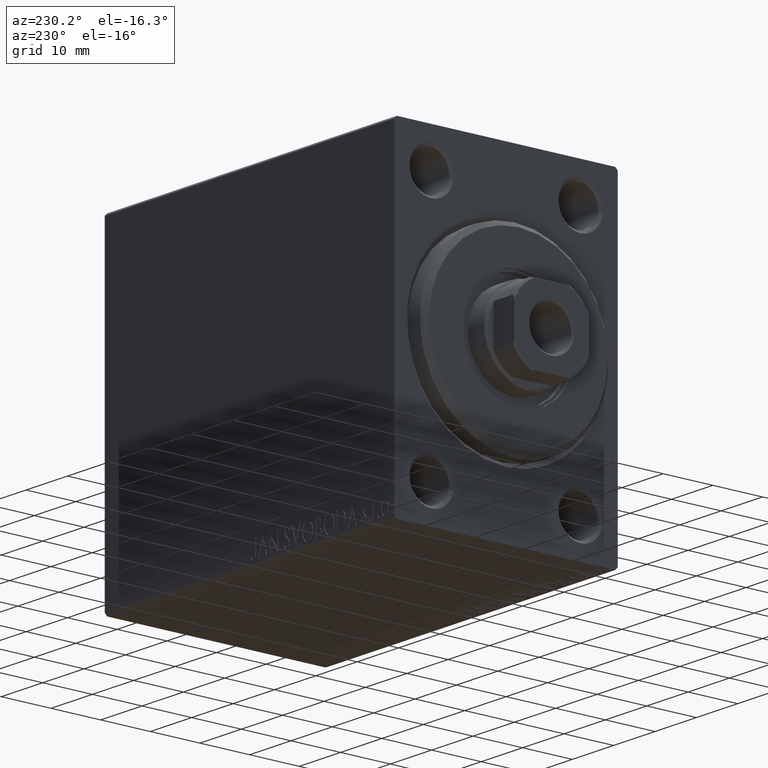
[diagram: clean part render]
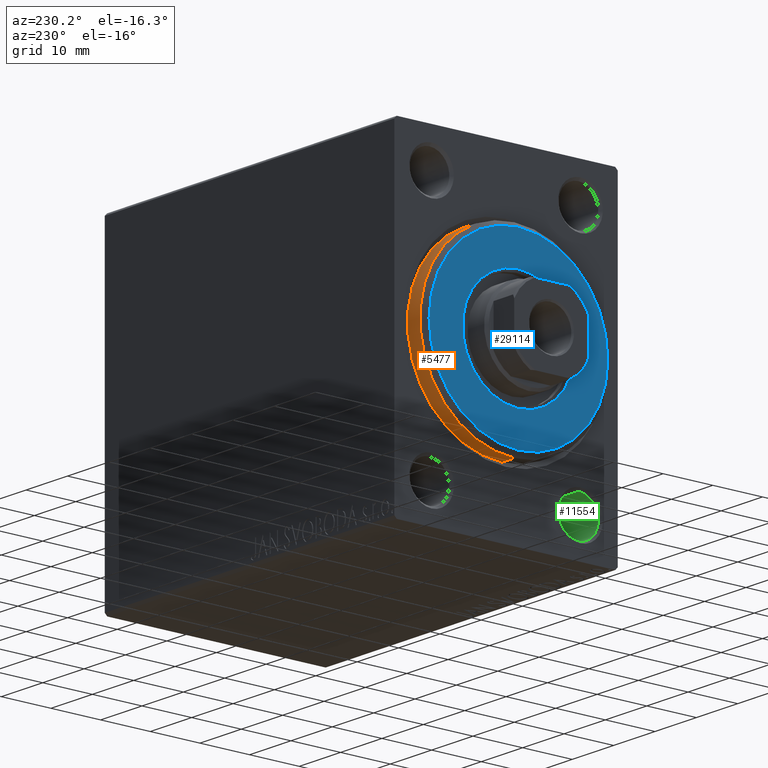
[diagram: same view with three faces highlighted in distinct colors, each labeled with its STEP entity id]
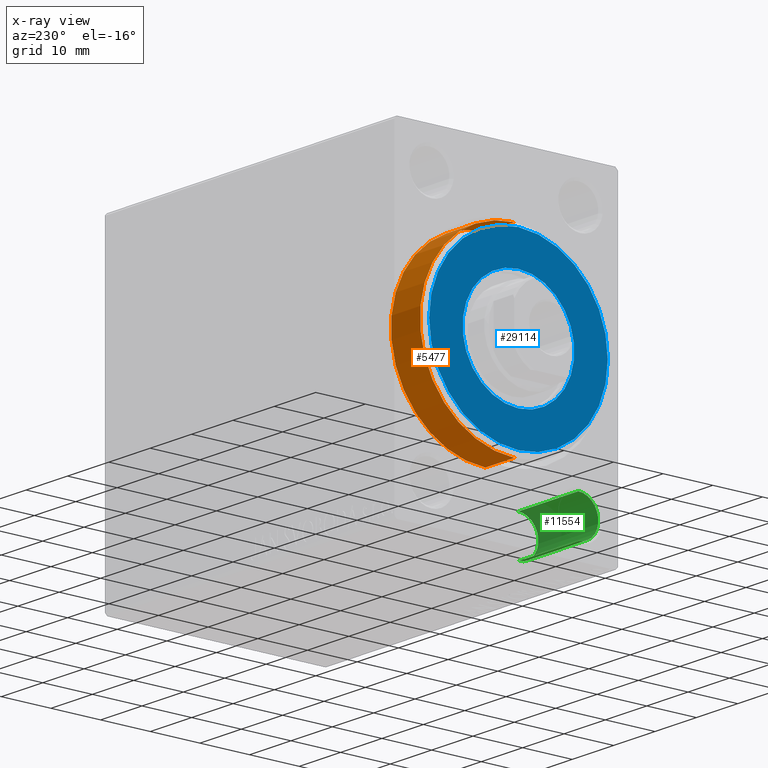
[diagram: x-ray of the same camera — body ghosted, the three highlighted faces saturated]
A machine part, auxiliary view with three faces highlighted in distinct colors.
The next image is the same camera in x-ray (body ghosted, the three faces saturated) — at least one of them is partly hidden behind the body in this view.
Their STEP definitions:

[orange] entity #5477 — the highlighted cylindrical surface (partial cylindrical patch) has radius 19 mm, axis along (1, -0, -0).
#2015 = DIRECTION ( 'NONE',  ( -1.000000000000000000, -0.000000000000000000, -0.000000000000000000 ) ) ;
#2277 = EDGE_LOOP ( 'NONE', ( #4511, #34311, #31344, #16781 ) ) ;
#2759 = VERTEX_POINT ( 'NONE', #42901 ) ;
#2841 = CIRCLE ( 'NONE', #26282, 19.00000000000000000 ) ;
#3554 = LINE ( 'NONE', #4433, #34435 ) ;
#4433 = CARTESIAN_POINT ( 'NONE',  ( 3.000000000000000000, 2.326828918379970970E-15, -19.00000000000000000 ) ) ;
#4511 = ORIENTED_EDGE ( 'NONE', *, *, #16220, .F. ) ;
#5435 = VERTEX_POINT ( 'NONE', #42976 ) ;
#5477 = ADVANCED_FACE ( 'NONE', ( #43198 ), #26199, .T. ) ;
#6459 = AXIS2_PLACEMENT_3D ( 'NONE', #15687, #12122, #36052 ) ;
#7722 = CARTESIAN_POINT ( 'NONE',  ( 1.999999999999992228, 2.326828918379970970E-15, -19.00000000000000000 ) ) ;
#9373 = AXIS2_PLACEMENT_3D ( 'NONE', #34838, #14495, #38865 ) ;
#10085 = CIRCLE ( 'NONE', #9373, 19.00000000000000000 ) ;
#10873 = VERTEX_POINT ( 'NONE', #36578 ) ;
#12122 = DIRECTION ( 'NONE',  ( -1.000000000000000000, -0.000000000000000000, -0.000000000000000000 ) ) ;
#13259 = EDGE_CURVE ( 'NONE', #5435, #2759, #10085, .T. ) ;
#14495 = DIRECTION ( 'NONE',  ( -1.000000000000000000, 0.000000000000000000, 0.000000000000000000 ) ) ;
#15687 = CARTESIAN_POINT ( 'NONE',  ( 3.000000000000000000, 0.000000000000000000, 0.000000000000000000 ) ) ;
#15932 = VECTOR ( 'NONE', #2015, 1000.000000000000000 ) ;
#16130 = DIRECTION ( 'NONE',  ( 0.000000000000000000, 0.000000000000000000, -1.000000000000000000 ) ) ;
#16220 = EDGE_CURVE ( 'NONE', #21702, #5435, #3554, .T. ) ;
#16781 = ORIENTED_EDGE ( 'NONE', *, *, #13259, .F. ) ;
#21702 = VERTEX_POINT ( 'NONE', #7722 ) ;
#22845 = DIRECTION ( 'NONE',  ( -1.000000000000000000, 0.000000000000000000, 0.000000000000000000 ) ) ;
#24983 = DIRECTION ( 'NONE',  ( -1.000000000000000000, -0.000000000000000000, -0.000000000000000000 ) ) ;
#25482 = LINE ( 'NONE', #43347, #15932 ) ;
#26199 = CYLINDRICAL_SURFACE ( 'NONE', #6459, 19.00000000000000000 ) ;
#26282 = AXIS2_PLACEMENT_3D ( 'NONE', #35823, #22845, #16130 ) ;
#26910 = EDGE_CURVE ( 'NONE', #21702, #10873, #2841, .T. ) ;
#31344 = ORIENTED_EDGE ( 'NONE', *, *, #40791, .T. ) ;
#34311 = ORIENTED_EDGE ( 'NONE', *, *, #26910, .T. ) ;
#34435 = VECTOR ( 'NONE', #24983, 1000.000000000000000 ) ;
#34838 = CARTESIAN_POINT ( 'NONE',  ( -5.000000000000000000, 0.000000000000000000, 0.000000000000000000 ) ) ;
#35823 = CARTESIAN_POINT ( 'NONE',  ( 1.999999999999992228, 0.000000000000000000, 0.000000000000000000 ) ) ;
#36052 = DIRECTION ( 'NONE',  ( 0.000000000000000000, 0.000000000000000000, 1.000000000000000000 ) ) ;
#36578 = CARTESIAN_POINT ( 'NONE',  ( 1.999999999999992228, 0.000000000000000000, 19.00000000000000000 ) ) ;
#38865 = DIRECTION ( 'NONE',  ( 0.000000000000000000, 0.000000000000000000, 1.000000000000000000 ) ) ;
#40791 = EDGE_CURVE ( 'NONE', #10873, #2759, #25482, .T. ) ;
#42901 = CARTESIAN_POINT ( 'NONE',  ( -5.000000000000000000, 0.000000000000000000, 19.00000000000000000 ) ) ;
#42976 = CARTESIAN_POINT ( 'NONE',  ( -5.000000000000000000, 2.326828918379970970E-15, -19.00000000000000000 ) ) ;
#43198 = FACE_OUTER_BOUND ( 'NONE', #2277, .T. ) ;
#43347 = CARTESIAN_POINT ( 'NONE',  ( 3.000000000000000000, 0.000000000000000000, 19.00000000000000000 ) ) ;

[blue] entity #29114 — the highlighted planar face has unit normal (-1, 0, 0).
#692 = AXIS2_PLACEMENT_3D ( 'NONE', #9833, #6500, #34417 ) ;
#1475 = FACE_OUTER_BOUND ( 'NONE', #11649, .T. ) ;
#2641 = EDGE_LOOP ( 'NONE', ( #15818, #36557 ) ) ;
#3615 = CARTESIAN_POINT ( 'NONE',  ( 3.000000000000000000, 0.000000000000000000, 0.000000000000000000 ) ) ;
#4387 = DIRECTION ( 'NONE',  ( 0.000000000000000000, 0.000000000000000000, -1.000000000000000000 ) ) ;
#4642 = CARTESIAN_POINT ( 'NONE',  ( 3.000000000000000000, 0.000000000000000000, 0.000000000000000000 ) ) ;
#4740 = EDGE_CURVE ( 'NONE', #5820, #7361, #43073, .T. ) ;
#5306 = VERTEX_POINT ( 'NONE', #10585 ) ;
#5820 = VERTEX_POINT ( 'NONE', #11191 ) ;
#6500 = DIRECTION ( 'NONE',  ( 1.000000000000000000, -0.000000000000000000, 0.000000000000000000 ) ) ;
#6798 = EDGE_CURVE ( 'NONE', #7361, #5820, #24921, .T. ) ;
#7361 = VERTEX_POINT ( 'NONE', #24700 ) ;
#7523 = PLANE ( 'NONE',  #34197 ) ;
#9833 = CARTESIAN_POINT ( 'NONE',  ( 3.000000000000000000, 0.000000000000000000, 0.000000000000000000 ) ) ;
#10585 = CARTESIAN_POINT ( 'NONE',  ( 3.000000000000000000, 0.000000000000000000, -11.25000000000000178 ) ) ;
#11037 = CIRCLE ( 'NONE', #18877, 11.25000000000000178 ) ;
#11084 = FACE_BOUND ( 'NONE', #2641, .T. ) ;
#11191 = CARTESIAN_POINT ( 'NONE',  ( 3.000000000000000000, 2.265596578422603002E-15, -17.99999999999999645 ) ) ;
#11545 = DIRECTION ( 'NONE',  ( 0.000000000000000000, 0.000000000000000000, -1.000000000000000000 ) ) ;
#11649 = EDGE_LOOP ( 'NONE', ( #23587, #35955 ) ) ;
#12269 = AXIS2_PLACEMENT_3D ( 'NONE', #4642, #22034, #11545 ) ;
#13411 = CARTESIAN_POINT ( 'NONE',  ( 3.000000000000000000, 1.377727649040772586E-15, 11.25000000000000178 ) ) ;
#14292 = VERTEX_POINT ( 'NONE', #13411 ) ;
#15089 = DIRECTION ( 'NONE',  ( 1.000000000000000000, -0.000000000000000000, 0.000000000000000000 ) ) ;
#15818 = ORIENTED_EDGE ( 'NONE', *, *, #37588, .F. ) ;
#16996 = DIRECTION ( 'NONE',  ( 0.000000000000000000, 0.000000000000000000, -1.000000000000000000 ) ) ;
#17560 = CARTESIAN_POINT ( 'NONE',  ( 3.000000000000000000, 0.000000000000000000, 0.000000000000000000 ) ) ;
#18418 = DIRECTION ( 'NONE',  ( 0.000000000000000000, 0.000000000000000000, -1.000000000000000000 ) ) ;
#18877 = AXIS2_PLACEMENT_3D ( 'NONE', #31407, #31187, #18418 ) ;
#19907 = DIRECTION ( 'NONE',  ( 1.000000000000000000, -0.000000000000000000, 0.000000000000000000 ) ) ;
#21727 = EDGE_CURVE ( 'NONE', #14292, #5306, #11037, .T. ) ;
#22034 = DIRECTION ( 'NONE',  ( 1.000000000000000000, 0.000000000000000000, 0.000000000000000000 ) ) ;
#23587 = ORIENTED_EDGE ( 'NONE', *, *, #6798, .T. ) ;
#24700 = CARTESIAN_POINT ( 'NONE',  ( 3.000000000000000000, 0.000000000000000000, 17.99999999999999645 ) ) ;
#24921 = CIRCLE ( 'NONE', #692, 17.99999999999999645 ) ;
#29114 = ADVANCED_FACE ( 'NONE', ( #1475, #11084 ), #7523, .T. ) ;
#31187 = DIRECTION ( 'NONE',  ( 1.000000000000000000, 0.000000000000000000, 0.000000000000000000 ) ) ;
#31407 = CARTESIAN_POINT ( 'NONE',  ( 3.000000000000000000, 0.000000000000000000, 0.000000000000000000 ) ) ;
#34197 = AXIS2_PLACEMENT_3D ( 'NONE', #17560, #15089, #4387 ) ;
#34417 = DIRECTION ( 'NONE',  ( 0.000000000000000000, 0.000000000000000000, -1.000000000000000000 ) ) ;
#34426 = CIRCLE ( 'NONE', #12269, 11.25000000000000178 ) ;
#35955 = ORIENTED_EDGE ( 'NONE', *, *, #4740, .T. ) ;
#36557 = ORIENTED_EDGE ( 'NONE', *, *, #21727, .F. ) ;
#37588 = EDGE_CURVE ( 'NONE', #5306, #14292, #34426, .T. ) ;
#40691 = AXIS2_PLACEMENT_3D ( 'NONE', #3615, #19907, #16996 ) ;
#43073 = CIRCLE ( 'NONE', #40691, 17.99999999999999645 ) ;

[green] entity #11554 — the highlighted cylindrical surface (edge-blend (fillet) strip) has radius 4 mm, axis along (-1, -0, -0).
#2403 = VECTOR ( 'NONE', #41570, 1000.000000000000000 ) ;
#4868 = DIRECTION ( 'NONE',  ( 0.000000000000000000, 0.000000000000000000, 1.000000000000000000 ) ) ;
#5066 = EDGE_CURVE ( 'NONE', #11691, #41249, #6430, .T. ) ;
#5329 = DIRECTION ( 'NONE',  ( -1.000000000000000000, -0.000000000000000000, -0.000000000000000000 ) ) ;
#5621 = EDGE_LOOP ( 'NONE', ( #29166, #24732, #10189, #24400 ) ) ;
#5822 = EDGE_CURVE ( 'NONE', #43758, #10826, #28559, .T. ) ;
#6406 = CARTESIAN_POINT ( 'NONE',  ( 0.4999999999999917843, -15.00000000000000000, -21.00000000000000355 ) ) ;
#6430 = CIRCLE ( 'NONE', #12823, 3.999999999999996447 ) ;
#7132 = DIRECTION ( 'NONE',  ( 0.000000000000000000, 0.000000000000000000, 1.000000000000000000 ) ) ;
#7418 = DIRECTION ( 'NONE',  ( 0.000000000000000000, 0.000000000000000000, -1.000000000000000000 ) ) ;
#9610 = DIRECTION ( 'NONE',  ( -1.000000000000000000, -0.000000000000000000, -0.000000000000000000 ) ) ;
#10053 = LINE ( 'NONE', #40452, #20222 ) ;
#10189 = ORIENTED_EDGE ( 'NONE', *, *, #5822, .T. ) ;
#10826 = VERTEX_POINT ( 'NONE', #6406 ) ;
#11554 = ADVANCED_FACE ( 'NONE', ( #42427 ), #15570, .F. ) ;
#11691 = VERTEX_POINT ( 'NONE', #28264 ) ;
#12823 = AXIS2_PLACEMENT_3D ( 'NONE', #28342, #17166, #7132 ) ;
#15570 = CYLINDRICAL_SURFACE ( 'NONE', #17175, 3.999999999999996447 ) ;
#17166 = DIRECTION ( 'NONE',  ( -1.000000000000000000, -0.000000000000000000, -0.000000000000000000 ) ) ;
#17175 = AXIS2_PLACEMENT_3D ( 'NONE', #22048, #5329, #4868 ) ;
#17627 = CARTESIAN_POINT ( 'NONE',  ( 0.000000000000000000, -15.00000000000000000, -28.99999999999999645 ) ) ;
#18806 = EDGE_CURVE ( 'NONE', #41249, #10826, #10053, .T. ) ;
#18916 = EDGE_CURVE ( 'NONE', #11691, #43758, #24788, .T. ) ;
#20222 = VECTOR ( 'NONE', #9610, 1000.000000000000000 ) ;
#21248 = CARTESIAN_POINT ( 'NONE',  ( 0.4999999999999917843, -15.00000000000000000, -28.99999999999999645 ) ) ;
#22048 = CARTESIAN_POINT ( 'NONE',  ( 0.000000000000000000, -15.00000000000000000, -25.00000000000000000 ) ) ;
#24400 = ORIENTED_EDGE ( 'NONE', *, *, #18806, .F. ) ;
#24732 = ORIENTED_EDGE ( 'NONE', *, *, #18916, .T. ) ;
#24788 = LINE ( 'NONE', #17627, #2403 ) ;
#28264 = CARTESIAN_POINT ( 'NONE',  ( 15.00000000000000000, -15.00000000000000000, -28.99999999999999645 ) ) ;
#28342 = CARTESIAN_POINT ( 'NONE',  ( 15.00000000000000000, -15.00000000000000000, -25.00000000000000000 ) ) ;
#28559 = CIRCLE ( 'NONE', #42866, 3.999999999999996447 ) ;
#29166 = ORIENTED_EDGE ( 'NONE', *, *, #5066, .F. ) ;
#31094 = DIRECTION ( 'NONE',  ( -1.000000000000000000, 0.000000000000000000, 0.000000000000000000 ) ) ;
#35537 = CARTESIAN_POINT ( 'NONE',  ( 0.4999999999999917843, -15.00000000000000000, -25.00000000000000000 ) ) ;
#39884 = CARTESIAN_POINT ( 'NONE',  ( 15.00000000000000000, -15.00000000000000000, -21.00000000000000355 ) ) ;
#40452 = CARTESIAN_POINT ( 'NONE',  ( 0.000000000000000000, -15.00000000000000000, -21.00000000000000355 ) ) ;
#41249 = VERTEX_POINT ( 'NONE', #39884 ) ;
#41570 = DIRECTION ( 'NONE',  ( -1.000000000000000000, -0.000000000000000000, -0.000000000000000000 ) ) ;
#42427 = FACE_OUTER_BOUND ( 'NONE', #5621, .T. ) ;
#42866 = AXIS2_PLACEMENT_3D ( 'NONE', #35537, #31094, #7418 ) ;
#43758 = VERTEX_POINT ( 'NONE', #21248 ) ;